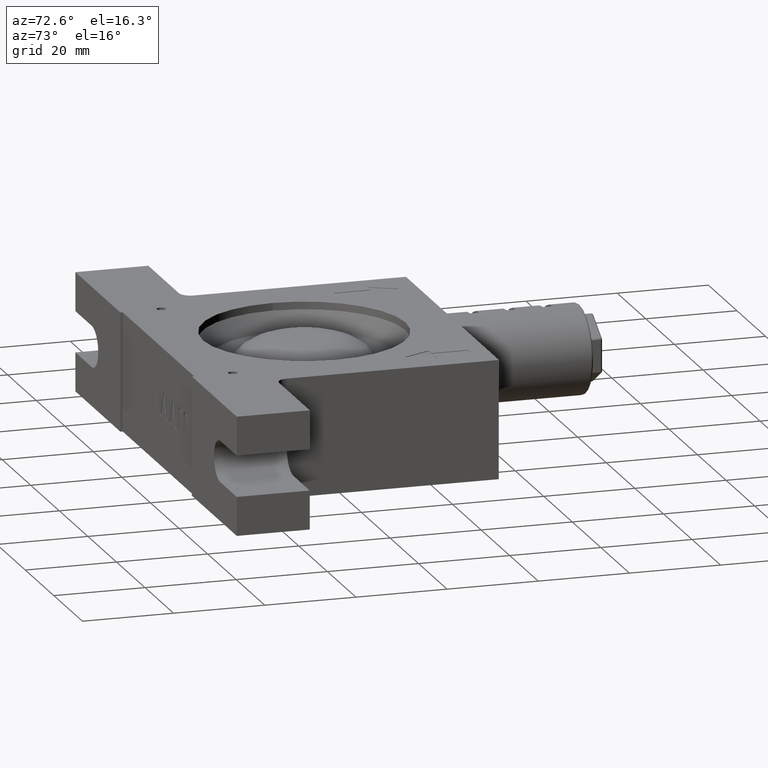
[diagram: clean part render]
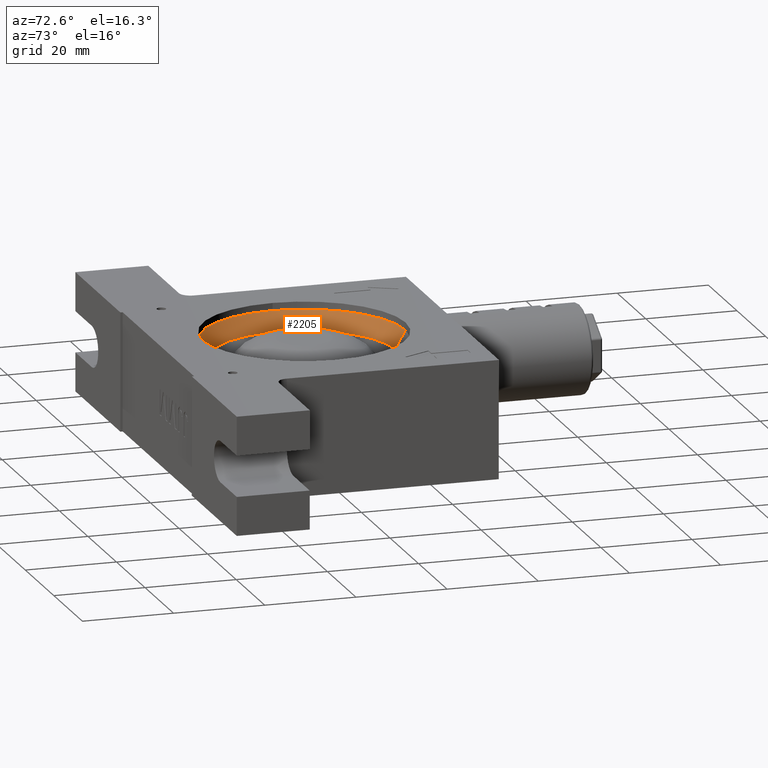
[diagram: same view with one face highlighted and labeled with its STEP entity id]
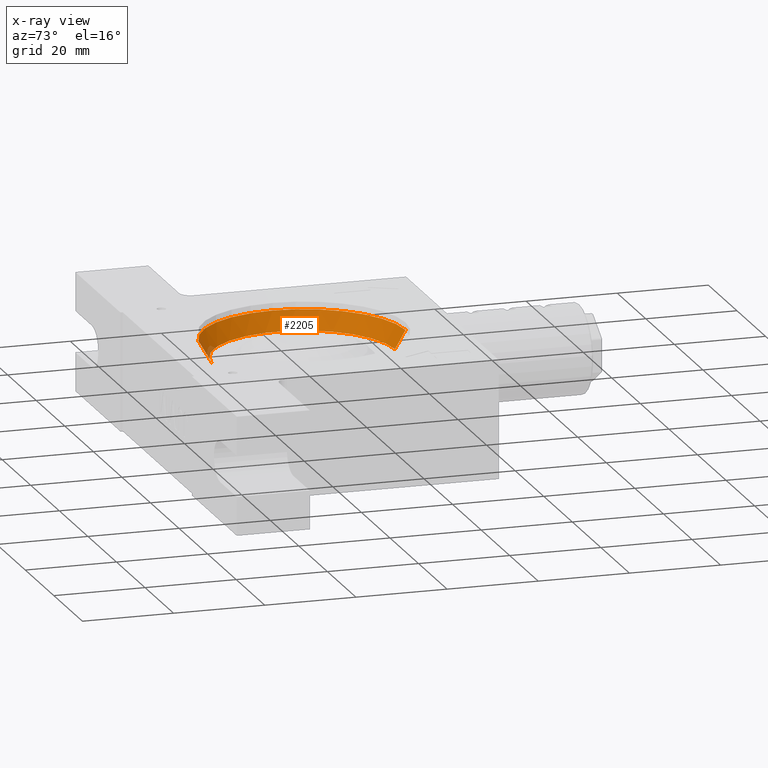
[diagram: x-ray of the same camera — body ghosted, the highlighted face saturated]
A machine part, auxiliary view. The second image highlights one B-rep face of the part: STEP entity #2205.
The next image is the same camera in x-ray: the body ghosted, the highlighted face saturated — about 1% of this face is hidden behind the body in this view.
In plain terms, the highlighted conical surface has half-angle 30 deg.
Its self-contained STEP definition (entity closure, byte-faithful):
#258 = LINE ( 'NONE', #5386, #4743 ) ;
#587 = LINE ( 'NONE', #2531, #6187 ) ;
#641 = EDGE_LOOP ( 'NONE', ( #3522, #4448, #6065, #4353 ) ) ;
#1046 = VERTEX_POINT ( 'NONE', #7025 ) ;
#1196 = AXIS2_PLACEMENT_3D ( 'NONE', #6282, #6371, #2028 ) ;
#1263 = CARTESIAN_POINT ( 'NONE',  ( -6.067564320616211100E-015, -19.91339745962155000, 7.350000000000002300 ) ) ;
#1264 = DIRECTION ( 'NONE',  ( 1.665334536937734800E-016, 1.000000000000000000, -1.561210639728350000E-016 ) ) ;
#1509 = VERTEX_POINT ( 'NONE', #4726 ) ;
#1545 = EDGE_CURVE ( 'NONE', #1911, #1046, #587, .T. ) ;
#1911 = VERTEX_POINT ( 'NONE', #1263 ) ;
#2028 = DIRECTION ( 'NONE',  ( 1.665334536937734800E-016, 1.000000000000000000, -1.312408397102917500E-016 ) ) ;
#2159 = DIRECTION ( 'NONE',  ( 9.071690638293561100E-017, 0.4999999999999996100, 0.8660254037844389300 ) ) ;
#2205 = ADVANCED_FACE ( 'NONE', ( #4577 ), #2953, .F. ) ;
#2332 = DIRECTION ( 'NONE',  ( -8.602726321297810600E-018, -1.224606353822375800E-016, -1.000000000000000000 ) ) ;
#2368 = DIRECTION ( 'NONE',  ( 8.602726321297810600E-018, 1.224606353822375800E-016, 1.000000000000000000 ) ) ;
#2531 = CARTESIAN_POINT ( 'NONE',  ( -5.727325909203532000E-015, -19.82679491924309900, 7.200000000000002800 ) ) ;
#2780 = EDGE_CURVE ( 'NONE', #1911, #6732, #5421, .T. ) ;
#2852 = DIRECTION ( 'NONE',  ( 1.665334536937734800E-016, 1.000000000000000000, -1.306700787367633300E-016 ) ) ;
#2953 = CONICAL_SURFACE ( 'NONE', #1196, 19.82679491924309900, 0.5235987755982982600 ) ;
#3085 = EDGE_CURVE ( 'NONE', #6732, #1509, #258, .T. ) ;
#3305 = CIRCLE ( 'NONE', #5716, 22.22279853638005100 ) ;
#3522 = ORIENTED_EDGE ( 'NONE', *, *, #1545, .F. ) ;
#3870 = AXIS2_PLACEMENT_3D ( 'NONE', #6644, #2332, #2852 ) ;
#3980 = CARTESIAN_POINT ( 'NONE',  ( 3.828213212977504900E-017, -6.123031769109110800E-018, 11.35000000000000100 ) ) ;
#4353 = ORIENTED_EDGE ( 'NONE', *, *, #6321, .T. ) ;
#4448 = ORIENTED_EDGE ( 'NONE', *, *, #2780, .T. ) ;
#4577 = FACE_OUTER_BOUND ( 'NONE', #641, .T. ) ;
#4726 = CARTESIAN_POINT ( 'NONE',  ( 3.739121523134078500E-015, 22.22279853638004400, 11.34999999999999800 ) ) ;
#4743 = VECTOR ( 'NONE', #2159, 999.9999999999998900 ) ;
#5047 = CARTESIAN_POINT ( 'NONE',  ( 3.320118080572175400E-015, 19.91339745962155000, 7.349999999999997000 ) ) ;
#5386 = CARTESIAN_POINT ( 'NONE',  ( 3.304405451476103100E-015, 19.82679491924309900, 7.199999999999997500 ) ) ;
#5421 = CIRCLE ( 'NONE', #3870, 19.91339745962155000 ) ;
#5716 = AXIS2_PLACEMENT_3D ( 'NONE', #3980, #2368, #1264 ) ;
#6065 = ORIENTED_EDGE ( 'NONE', *, *, #3085, .T. ) ;
#6187 = VECTOR ( 'NONE', #6354, 1000.000000000000000 ) ;
#6282 = CARTESIAN_POINT ( 'NONE',  ( 2.580817896389110400E-018, -5.143346686053959400E-016, 7.200000000000000200 ) ) ;
#6321 = EDGE_CURVE ( 'NONE', #1509, #1046, #3305, .T. ) ;
#6354 = DIRECTION ( 'NONE',  ( -1.370488872682053100E-016, -0.4999999999999993300, 0.8660254037844390400 ) ) ;
#6371 = DIRECTION ( 'NONE',  ( 8.602726321297810600E-018, 1.224606353822375800E-016, 1.000000000000000000 ) ) ;
#6644 = CARTESIAN_POINT ( 'NONE',  ( 3.871226844583765700E-018, -4.959655732980599700E-016, 7.349999999999999600 ) ) ;
#6732 = VERTEX_POINT ( 'NONE', #5047 ) ;
#7025 = CARTESIAN_POINT ( 'NONE',  ( -6.384065168441959200E-015, -22.22279853638004400, 11.35000000000000300 ) ) ;